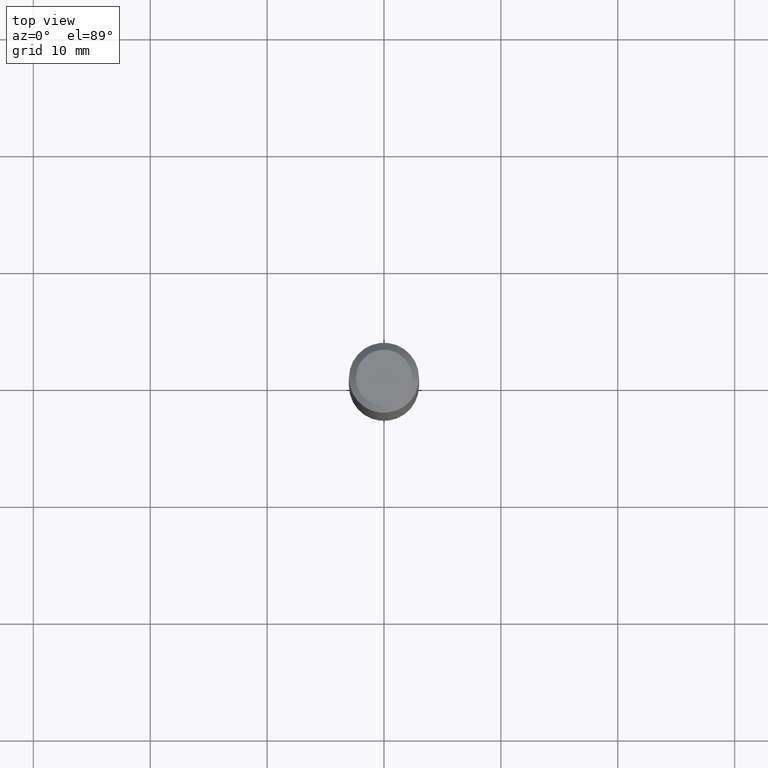
[diagram: clean part render]
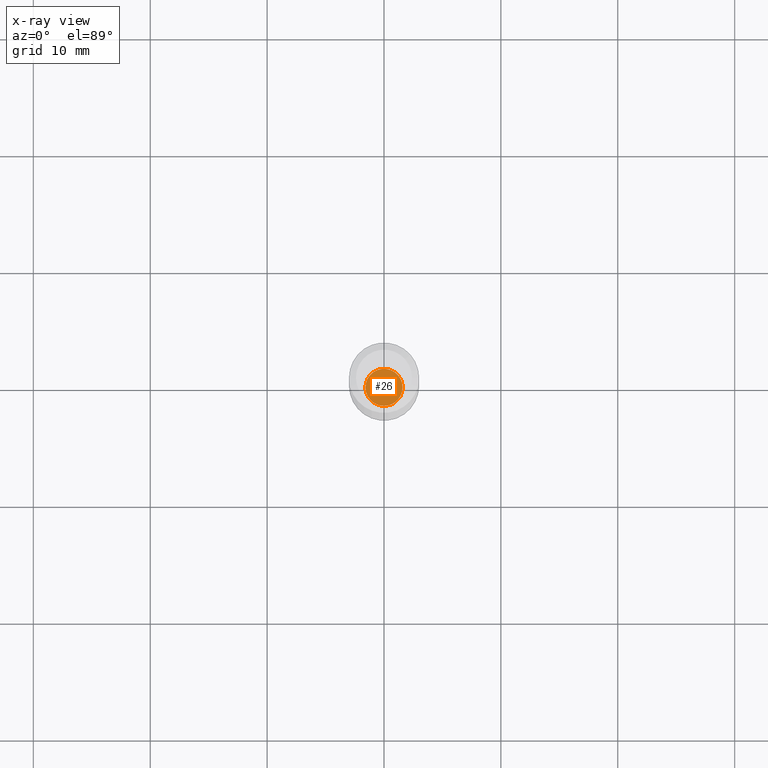
[diagram: x-ray — body ghosted, one internal face saturated and labeled with its STEP entity id]
A machine part, top view, then the same camera in x-ray: the body is ghosted and one INTERNAL B-rep face — a face not visible from any outside direction — is saturated and labeled: STEP entity #26.
In plain terms, the highlighted planar face has unit normal (-0, 0, 1).
Its self-contained STEP definition (entity closure, byte-faithful):
#5 = ORIENTED_EDGE ( 'NONE', *, *, #225, .F. ) ;
#8 = DIRECTION ( 'NONE',  ( -2.445468806185136597E-29, 3.491481338843145583E-15, 1.000000000000000000 ) ) ;
#18 = AXIS2_PLACEMENT_3D ( 'NONE', #46, #8, #271 ) ;
#26 = ADVANCED_FACE ( 'NONE', ( #178 ), #69, .F. ) ;
#27 = CIRCLE ( 'NONE', #18, 0.06250000000000000000 ) ;
#46 = CARTESIAN_POINT ( 'NONE',  ( 4.621202403048053204E-29, -6.597852286011892490E-15, -1.889700000000000157 ) ) ;
#65 = DIRECTION ( 'NONE',  ( -2.438088387897960049E-29, 3.491481338843145188E-15, 1.000000000000000000 ) ) ;
#69 = PLANE ( 'NONE',  #384 ) ;
#86 = EDGE_LOOP ( 'NONE', ( #337, #5 ) ) ;
#169 = EDGE_CURVE ( 'NONE', #381, #460, #461, .T. ) ;
#176 = DIRECTION ( 'NONE',  ( 1.000000000000000000, -6.982962677686262766E-15, 0.000000000000000000 ) ) ;
#178 = FACE_OUTER_BOUND ( 'NONE', #86, .T. ) ;
#181 = CARTESIAN_POINT ( 'NONE',  ( 4.621202403048053204E-29, -6.597852286011892490E-15, -1.889700000000000157 ) ) ;
#225 = EDGE_CURVE ( 'NONE', #460, #381, #27, .T. ) ;
#271 = DIRECTION ( 'NONE',  ( 1.000000000000000000, -6.982962677686262766E-15, 0.000000000000000000 ) ) ;
#289 = CARTESIAN_POINT ( 'NONE',  ( -0.06250000000000000000, -6.151113848987719461E-15, -1.889700000000000157 ) ) ;
#337 = ORIENTED_EDGE ( 'NONE', *, *, #169, .F. ) ;
#352 = DIRECTION ( 'NONE',  ( -2.445468806185136597E-29, 3.491481338843145583E-15, 1.000000000000000000 ) ) ;
#381 = VERTEX_POINT ( 'NONE', #465 ) ;
#384 = AXIS2_PLACEMENT_3D ( 'NONE', #483, #65, #436 ) ;
#436 = DIRECTION ( 'NONE',  ( 1.000000000000000000, -6.982962677686265922E-15, 4.876176775795935793E-29 ) ) ;
#449 = AXIS2_PLACEMENT_3D ( 'NONE', #181, #352, #176 ) ;
#460 = VERTEX_POINT ( 'NONE', #289 ) ;
#461 = CIRCLE ( 'NONE', #449, 0.06250000000000000000 ) ;
#465 = CARTESIAN_POINT ( 'NONE',  ( 0.06250000000000000000, -7.034287453367284159E-15, -1.889700000000000157 ) ) ;
#483 = CARTESIAN_POINT ( 'NONE',  ( 4.621202403048053204E-29, -6.597852286011892490E-15, -1.889700000000000157 ) ) ;